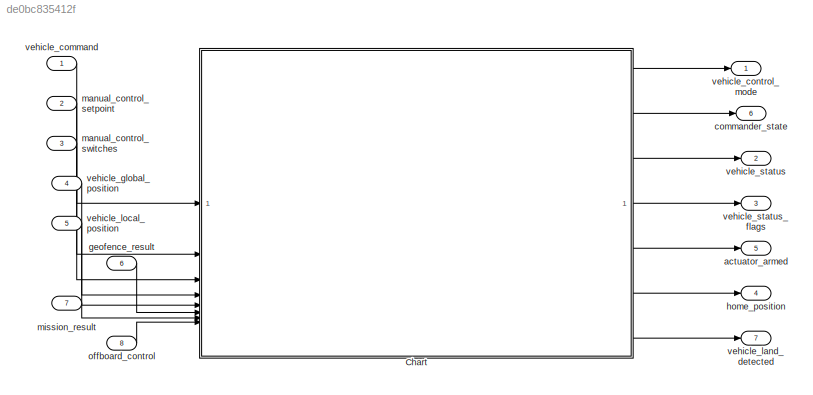
MODEL slx_de0bc835412f
KIND model
CONFIG AbsTol = auto
CONFIG EnableMultiTasking = off
CONFIG FixedStep = 0.005
CONFIG MaxStep = auto
CONFIG MinStep = auto
CONFIG RelTol = 1e-3
CONFIG SampleTimeConstraint = Unconstrained
CONFIG SolverName = FixedStepAuto
CONFIG StartTime = 0.0
CONFIG StopTime = 10.0
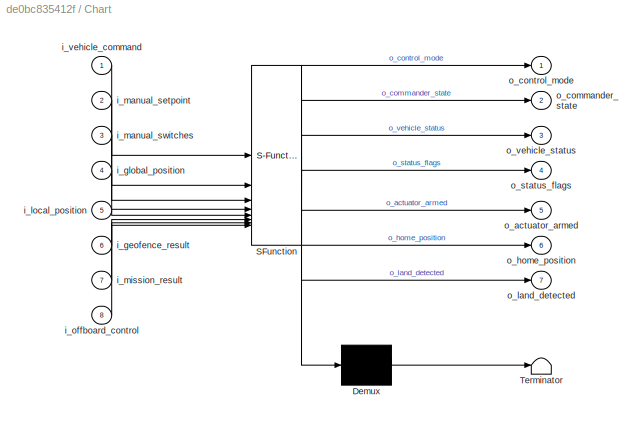
BLOCK [SubSystem] Chart
  ErrorFcn = Stateflow.Translate.translate
  PermitHierarchicalResolution = ExplicitOnly
  SFBlockType = Chart
  TreatAsAtomicUnit = on
BLOCK [Demux] Chart/ Demux 
  Outputs = 1
BLOCK [S-Function] Chart/ SFunction 
  EnableBusSupport = on
  FunctionName = sf_sfun
  Parameters = 0,ACTUATOR_ARMED_INIT,ARM_DISARM_REASON_AUTO_DISARM_LAND,ARM_DISARM_REASON_AUTO_DISARM_PREFLIGHT,ARM_DISARM_REASON_KILL_SWITCH,ARM_DISARM_REASON_LOCKDOWN,ARM_DISARM_REASON_RC_STICK,ARM_DISARM_REASON_TRANSITION_TO_STANDBY,CBRK_AIRSPD_CHK,CBRK_ENGINEFAIL,CBRK_FLIGHTTERM,CBRK_SUPPLY_CHK,CBRK_USB_CHK,CBRK_VELPOSERR,CBRK_VTOLARMING,COMMANDER_MONITORING_INTERVAL,COMMANDER_STATE_INIT,COM_ARM_SWISBTN,COM_...<+766ch>
  PortCounts = [8 8]
  SFcnIsStateOwnerBlock = off
  SFunctionDeploymentMode = off
  Tag = Stateflow S-Function 3
BLOCK [Terminator] Chart/ Terminator 
BLOCK [Inport] Chart/i_geofence_result
  Port = 6
BLOCK [Inport] Chart/i_global_position
  Port = 4
BLOCK [Inport] Chart/i_local_position
  Port = 5
BLOCK [Inport] Chart/i_manual_setpoint
  Port = 2
BLOCK [Inport] Chart/i_manual_switches
  Port = 3
BLOCK [Inport] Chart/i_mission_result
  Port = 7
BLOCK [Inport] Chart/i_offboard_control
  Port = 8
BLOCK [Inport] Chart/i_vehicle_command
BLOCK [Outport] Chart/o_actuator_armed
  Port = 5
BLOCK [Outport] Chart/o_commander_state
  Port = 2
BLOCK [Outport] Chart/o_control_mode
BLOCK [Outport] Chart/o_home_position
  Port = 6
BLOCK [Outport] Chart/o_land_detected
  Port = 7
BLOCK [Outport] Chart/o_status_flags
  Port = 4
BLOCK [Outport] Chart/o_vehicle_status
  Port = 3
BLOCK [Outport] actuator_armed
  BusOutputAsStruct = on
  OutDataTypeStr = Bus: actuator_armed_s
  Port = 5
BLOCK [Outport] commander_state
  BusOutputAsStruct = on
  OutDataTypeStr = Bus: commander_state_s
  Port = 6
BLOCK [Inport] geofence_result
  BusOutputAsStruct = on
  OutDataTypeStr = Bus: geofence_result_s
  Port = 6
BLOCK [Outport] home_position
  BusOutputAsStruct = on
  OutDataTypeStr = Bus: home_position_s
  Port = 4
BLOCK [Inport] manual_control_setpoint
  BusOutputAsStruct = on
  LockScale = on
  OutDataTypeStr = Bus: manual_control_setpoint_s
  Port = 2
BLOCK [Inport] manual_control_switches
  BusOutputAsStruct = on
  LockScale = on
  OutDataTypeStr = Bus: manual_control_switches_s
  Port = 3
BLOCK [Inport] mission_result
  BusOutputAsStruct = on
  OutDataTypeStr = Bus: mission_result_s
  Port = 7
BLOCK [Inport] offboard_control
  BusOutputAsStruct = on
  OutDataTypeStr = Bus: offboard_control_mode_s
  Port = 8
BLOCK [Inport] vehicle_command
  BusOutputAsStruct = on
  OutDataTypeStr = Bus: vehicle_command_s
BLOCK [Outport] vehicle_control_mode
  OutDataTypeStr = Bus: vehicle_control_mode_s
BLOCK [Inport] vehicle_global_position
  BusOutputAsStruct = on
  OutDataTypeStr = Bus: vehicle_global_position_s
  Port = 4
BLOCK [Outport] vehicle_land_detected
  BusOutputAsStruct = on
  OutDataTypeStr = Bus: vehicle_land_detected_s
  Port = 7
BLOCK [Inport] vehicle_local_position
  BusOutputAsStruct = on
  OutDataTypeStr = Bus: vehicle_local_position_s
  Port = 5
BLOCK [Outport] vehicle_status
  OutDataTypeStr = Bus: vehicle_status_s
  Port = 2
BLOCK [Outport] vehicle_status_flags
  BusOutputAsStruct = on
  OutDataTypeStr = Bus: vehicle_status_flags_s
  Port = 3
LINE Chart:1 -> vehicle_control_mode:1
LINE Chart:2 -> commander_state:1
LINE Chart:3 -> vehicle_status:1
LINE Chart:4 -> vehicle_status_flags:1
LINE Chart:5 -> actuator_armed:1
LINE Chart:6 -> home_position:1
LINE Chart:7 -> vehicle_land_detected:1
LINE geofence_result:1 -> Chart:6
LINE manual_control_setpoint:1 -> Chart:2
LINE manual_control_switches:1 -> Chart:3
LINE mission_result:1 -> Chart:7
LINE offboard_control:1 -> Chart:8
LINE vehicle_command:1 -> Chart:1
LINE vehicle_global_position:1 -> Chart:4
LINE vehicle_local_position:1 -> Chart:5
CHART Chart states=133 transitions=290
  STATE_LABEL 'initialize\nen:\ng_boot_timestamp = hrt_absolute_time();\ng_last_lpos_fail_time_us = g_boot_timestamp;\ng_last_gpos_fail_time_us = g_boot_timestamp;\ng_last_lvel_fail_time_us = g_boot_timestamp;\n'
  STATE_LABEL 'parameter_update\nen,du:\n% 以下参数必须加锁的情况才能修改\nif ~o_actuator_armed.armed\n    % o_vehicle_status.system_type = uint8(MAV_TYPE);\n    % 飞机类型\n    o_vehicle_status.vehicle_type = uint8(VEHICLE_STATUS.VEHICLE_TYPE_FIXED_WING);\n    % 是否垂起无人机\n    o_vehicle_status.is_vtol = false;\n    o_vehicle_status.is_vtol_tailsitter = false;\n    %  sys_id和comp_id\n    o_vehicle_status.system_id       = uint8(MAV_SYS_ID);\n  ...<+1057ch>'
  STATE_LABEL 'peripheral_check'
  STATE_LABEL 'saftey_button\nen,du:\nif hasChanged(i_safety_button.timstamp)\n    %  set_health_flags(subsystem_info_s::SUBSYSTEM_TYPE_MOTORCONTROL, _safety.safety_switch_available, _safety.safety_off,\n    % _safety.safety_switch_available, _status);\n    % disarm if safety is now on and still armed\n    if (o_actuator_armed.armed && i_safety_button.safety_switch_available && ~i_safety_button.safety_off)\n        saf...<+827ch>'
  STATE_LABEL 'system_power\nen,du:\nif hasChagned(i_system_power.timestamp) && hrt_elapsed_time(i_system_power.timestamp) < 1e6\n    if (i_system_power.servo_valid && ...\n            ~i_system_power.brick_valid && ...\n            ~i_system_power.usb_connected)\n        % flying only on servo rail, this is unsafe\n        o_status_flags.condition_power_input_valid = false;\n    else\n        o_status_flags.condition_po...<+100ch>'
  STATE_LABEL 'battery_status'
  STATE_LABEL 'battery_status_check'
  STATE_LABEL 'SCRIPT:\nfunction battery_status_check\n \n\n% if ~hasChanged(i_battery_status.timestamp)\n%     return;\n% end\n'
  STATE_LABEL 'cpu_check'
  STATE_LABEL 'datalink_check'
  STATE_LABEL 'saftey_button\nen,du:\nif hasChanged(i_safety_button.timstamp)\n    %  set_health_flags(subsystem_info_s::SUBSYSTEM_TYPE_MOTORCONTROL, _safety.safety_switch_available, _safety.safety_off,\n    % _safety.safety_switch_available, _status);\n    % disarm if safety is now on and still armed\n    if (o_actuator_armed.armed && i_safety_button.safety_switch_available && ~i_safety_button.safety_off)\n        saf...<+827ch>'
  STATE_LABEL 'system_power\nen,du:\nif hasChagned(i_system_power.timestamp) && hrt_elapsed_time(i_system_power.timestamp) < 1e6\n    if (i_system_power.servo_valid && ...\n            ~i_system_power.brick_valid && ...\n            ~i_system_power.usb_connected)\n        % flying only on servo rail, this is unsafe\n        o_status_flags.condition_power_input_valid = false;\n    else\n        o_status_flags.condition_po...<+100ch>'
  STATE_LABEL 'battery_status'
  STATE_LABEL 'battery_status_check'
  STATE_LABEL 'SCRIPT:\nfunction battery_status_check\n \n\n% if ~hasChanged(i_battery_status.timestamp)\n%     return;\n% end\n'
  STATE_LABEL 'battery_status_check'
  STATE_LABEL 'SCRIPT:\nfunction battery_status_check\n \n\n% if ~hasChanged(i_battery_status.timestamp)\n%     return;\n% end\n'
  STATE_LABEL 'cpu_check'
  STATE_LABEL 'datalink_check'
  STATE_LABEL 'control_status'
  STATE_LABEL 'manual_control\nen,du:\nis_rc_available =  ~o_status_flags.rc_input_blocked && ...\n    i_manual_setpoint.timestamp ~= 0 && ...\n    hrt_elapsed_time(i_manual_setpoint.timestamp) < 1e6;\nis_rc_updated =hasChanged(i_manual_setpoint.timestamp)  ;'
  STATE_LABEL 'rc_signal_init'
  STATE_LABEL 'rc_signal_found_once\nen:\no_status_flags.rc_signal_found_once=true;\ng_status_changed = true;\n%set_health_flags(SUBSYSTEM_TYPE_RCRECEIVER);'
  STATE_LABEL 'rc_signal_gain\nen:\nif g_rc_signal_lost_timestamp > 0\n    mavlink_log_info(g_mavlink_log_pub, "Manual control regained after %.1f", single(1e-6 * hrt_elapsed_time(g_rc_signal_lost_timestamp)));\nend\n% set_health_flags(SUBSYSTEM_TYPE_RCRECEIVER);\ng_status_changed = true;\nen,du:\no_vehicle_status.rc_signal_lost = false;\n'
  STATE_LABEL 'rc_mode_override\n%abort autonomous mode and switch to position mode if sticks are moved significantly\n'
  STATE_LABEL 'rc_arm_disarm\nen,du:\nrc_arming_enabled = o_vehicle_status.rc_input_mode ~= uint8(VEHICLE_STATUS.RC_IN_MODE_OFF);\nif ~rc_arming_enabled\n    return;\nend\n% COM_ARM_SWISBTN=0表示使用开关，=1表示使用按钮\nuse_stick = i_manual_switches.arm_switch == uint8(MANUAL_CONTROL_SWITCHES.SWITCH_POS_NONE);\nuse_button = ~use_stick && COM_ARM_SWISBTN == 1;\nuse_switch = ~use_stick && COM_ARM_SWISBTN == 0;\n% 遥控器油门低且偏航小（加锁）\nstick_i...<+1375ch>'
  STATE_LABEL 'rc_manual_switch'
  STATE_LABEL 'kill_switch\nen,du:\nkill_switch_engaged      = i_manual_switches.kill_switch == uint8(MANUAL_CONTROL_SWITCHES.SWITCH_POS_ON);\nkill_switch_disengaged = i_manual_switches.kill_switch == uint8(MANUAL_CONTROL_SWITCHES.SWITCH_POS_OFF);\n'
  STATE_LABEL 'manual_lockdown_engaged\nen:\nif o_land_detected.landed\n    mavlink_log_info(g_mavlink_log_pub, "Kill-switch engaged");\nelse\n    mavlink_log_critical(g_mavlink_log_pub, "Kill-switch engaged");\nend\ng_status_changed = true;\no_actuator_armed.manual_lockdown = true;\n'
  STATE_LABEL 'manual_lockdown_disengaged\nen:\nmavlink_log_info(g_mavlink_log_pub, "Kill-switch disengaged");\ng_status_changed = true;\no_actuator_armed.manual_lockdown = false;'
  STATE_LABEL '[kill_switch_engaged]'
  STATE_LABEL '[kill_switch_engaged]'
  STATE_LABEL '[kill_switch_disengaged]'
  STATE_LABEL 'main_state\nen,du:\nif set_main_state_rc() == TRANSITION_CHANGED\n    % tune_positive(_armed.armed);\n    g_status_changed = true;\nend\n'
  STATE_LABEL 'print_reject_mode(state)'
  STATE_LABEL 'SCRIPT:\nfunction print_reject_mode(state)\n\npersistent g_last_print_mode_reject_time\nif isempty(g_last_print_mode_reject_time)\n    g_last_print_mode_reject_time = uint64(0);\nend\n\nif hrt_elapsed_time(g_last_print_mode_reject_time) > 1e6\n    mavlink_log_critical(g_mavlink_log_pub, "Switching to %s is currently not available.", main_state_str(state));\n\n    % only buzz if armed, because else we\'re driv...<+166ch>'
  STATE_LABEL 'result = set_main_state_rc'
  STATE_LABEL 'SCRIPT:\nfunction result = set_main_state_rc\n\nresult = TRANSITION_NOT_CHANGED;\n\n% i_manual_swithes更新且有开关变化时，采进行模式切换\nshould_evaluate_rc_mode_switch = ...\n    hasChanged(i_manual_switches.timestamp) && ( ...\n    hasChanged(i_manual_switches.offboard_switch) || ...\n    hasChanged(i_manual_switches.return_switch) || ...\n    hasChanged(i_manual_switches.mode_switch) || ...\n    hasChanged(i_manual_switch...<+3608ch>'
  STATE_LABEL 'result = try_mode_change(desired_mode)'
  STATE_LABEL 'SCRIPT:\nfunction result = try_mode_change(desired_mode)\n \nresult = int8(0);\n'
CHART  states=0 transitions=0
